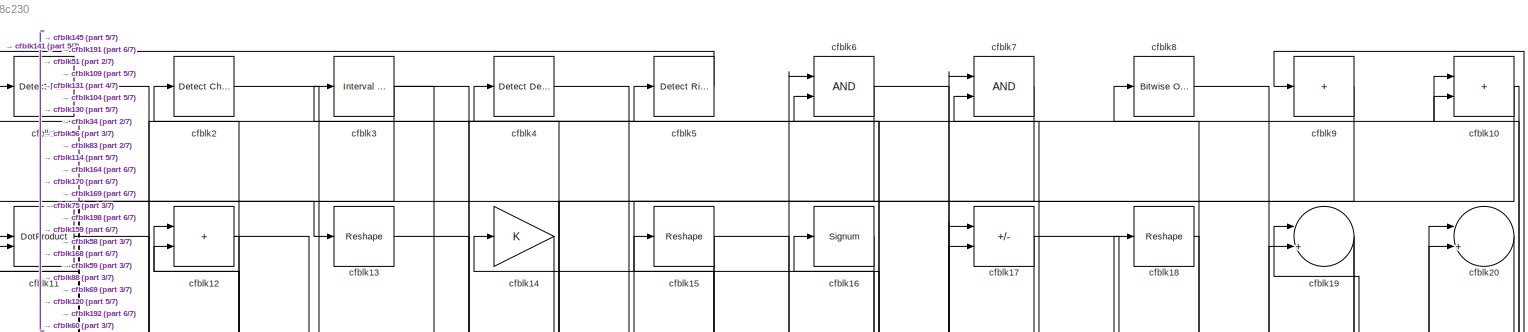
[diagram: root canvas - part 1/7, full width, top band]
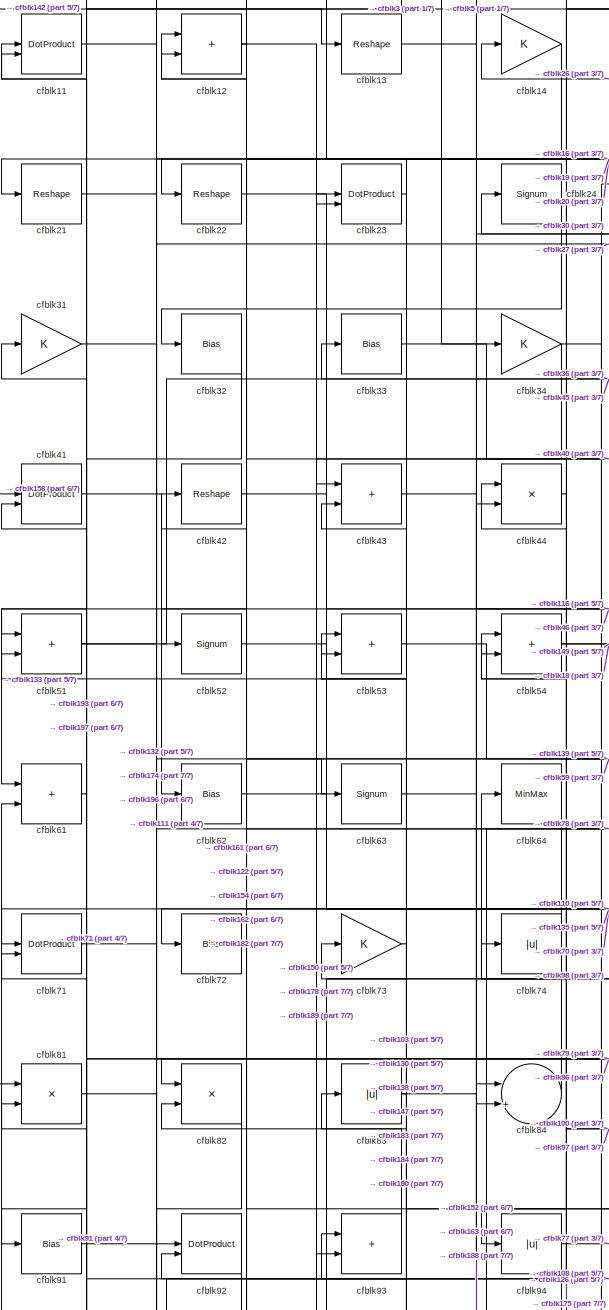
[diagram: root canvas - part 2/7, top left region]
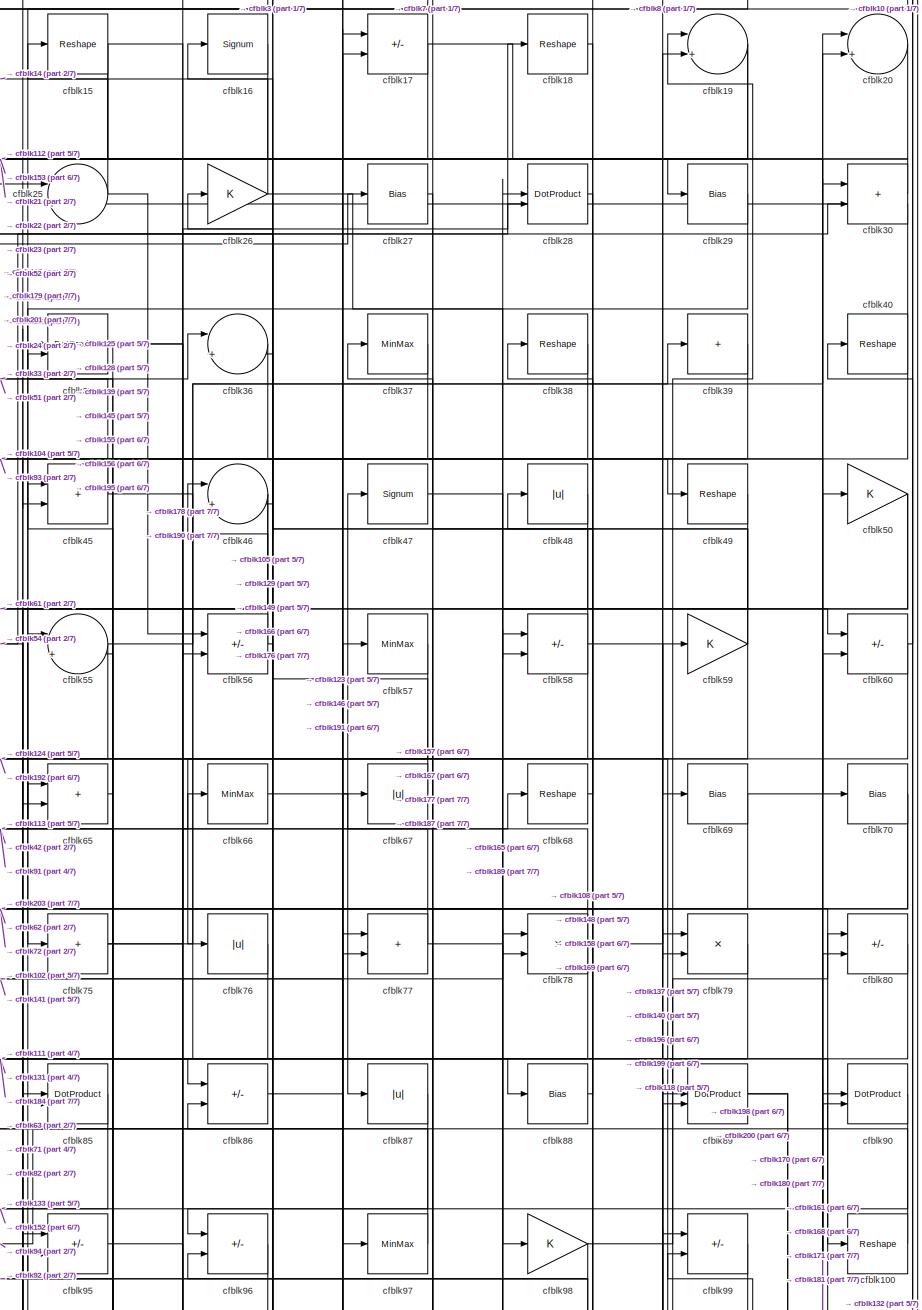
[diagram: root canvas - part 3/7, top right region]
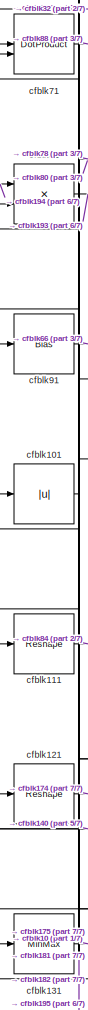
[diagram: root canvas - part 4/7, middle left region]
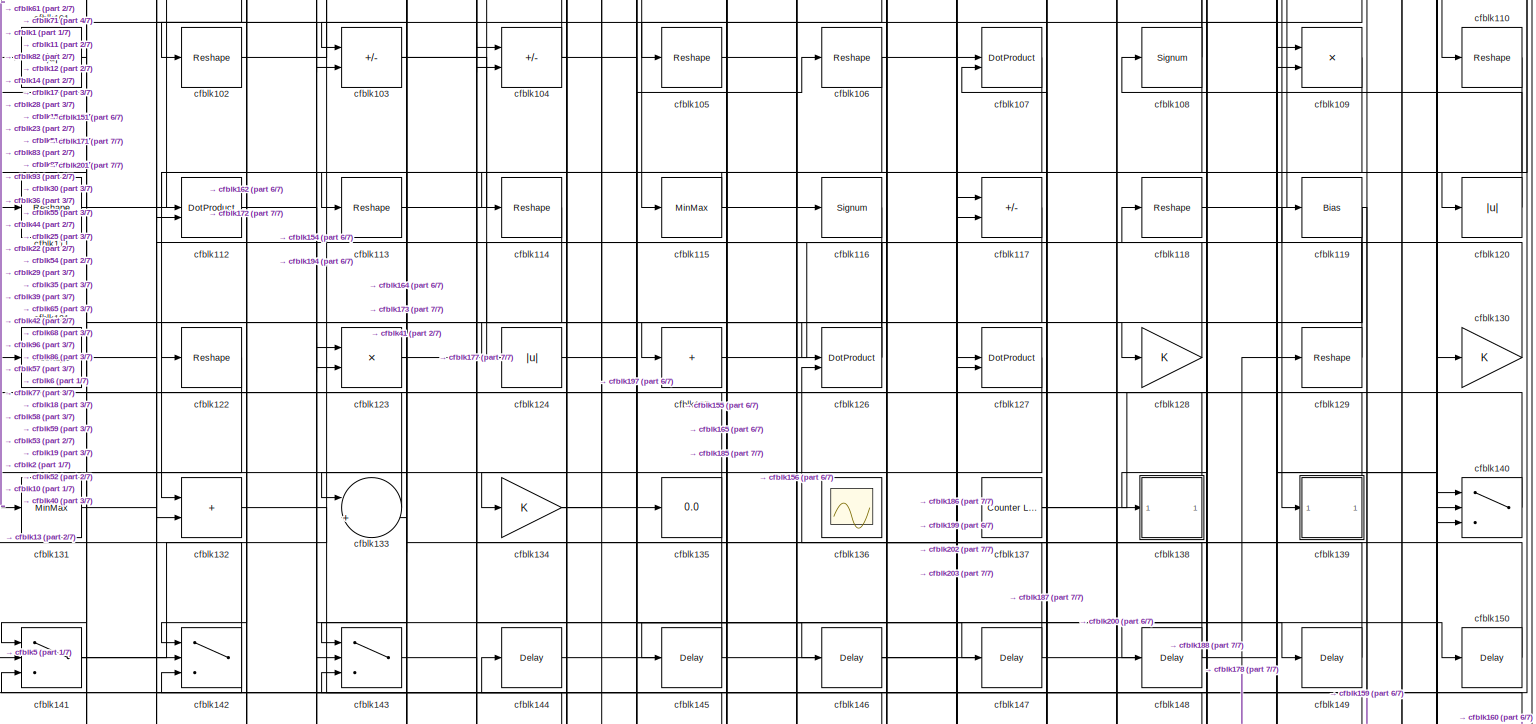
[diagram: root canvas - part 5/7, full width, middle band]
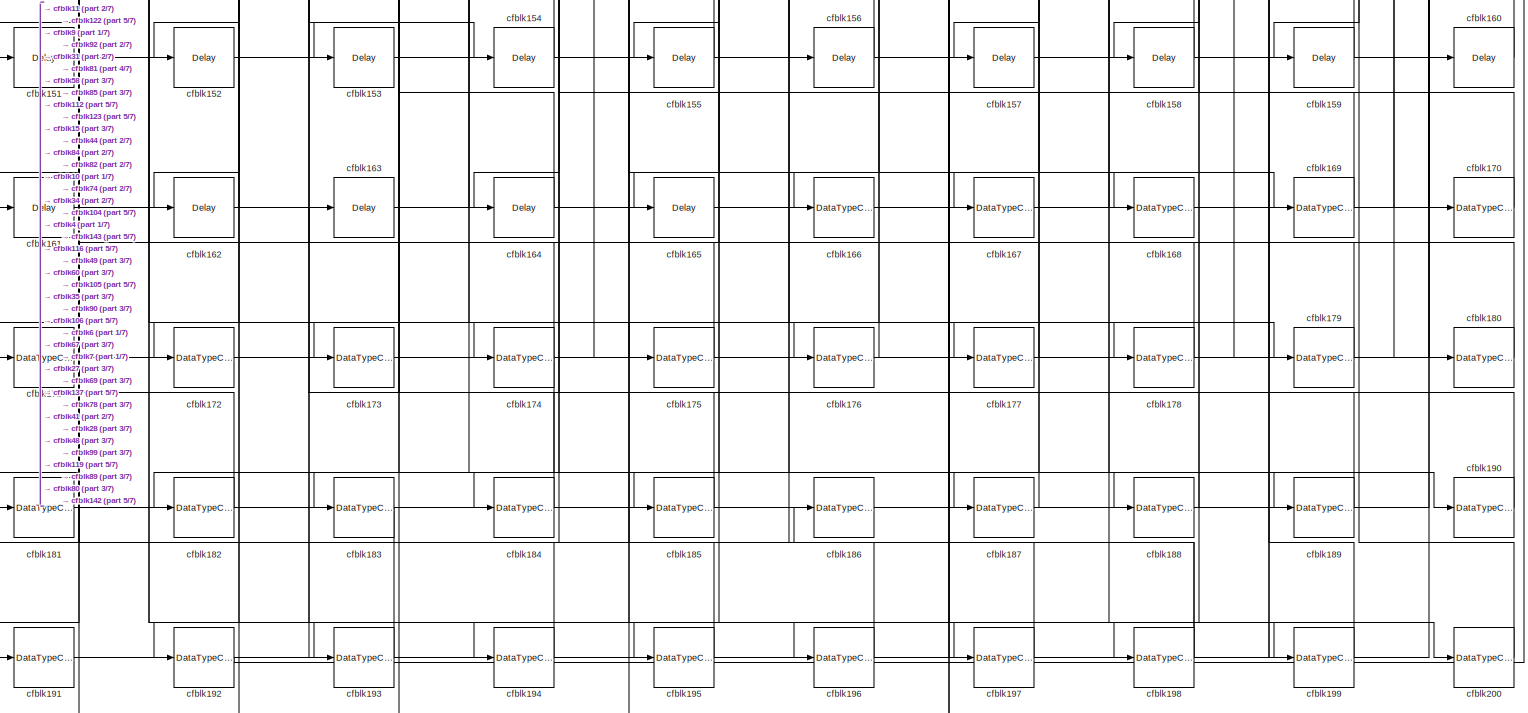
[diagram: root canvas - part 6/7, full width, bottom band]
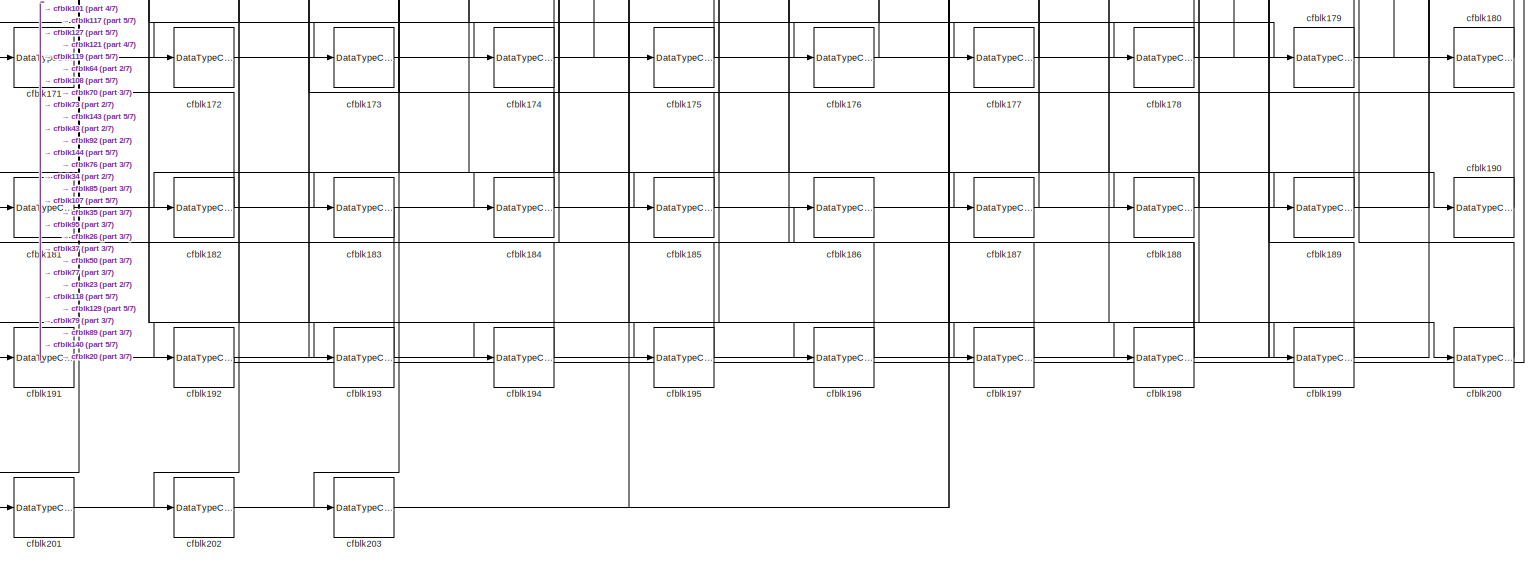
[diagram: root canvas - part 7/7, full width, bottom band]
MODEL slx_63f96dd8c230
KIND model
CONFIG AbsTol = auto
CONFIG EnableMultiTasking = off
CONFIG FixedStep = auto
CONFIG MaxStep = auto
CONFIG MinStep = auto
CONFIG RelTol = 1e-3
CONFIG SampleTimeConstraint = Unconstrained
CONFIG SolverName = VariableStepAuto
CONFIG StartTime = 0.0
CONFIG StopTime = 10.0
BLOCK [Reference] cfblk1  REF=hdlsllib/Logic and Bit
Operations/Detect Fall
Nonpositive
  SourceBlock = hdlsllib/Logic and Bit\nOperations/Detect Fall\nNonpositive
  SourceType = Detect Fall Nonpositive
BLOCK [Sum] cfblk10
  IconShape = rectangular
BLOCK [Reshape] cfblk100
BLOCK [Abs] cfblk101
  SaturateOnIntegerOverflow = off
BLOCK [Reshape] cfblk102
BLOCK [Sum] cfblk103
  IconShape = rectangular
  Inputs = +-
BLOCK [Sum] cfblk104
  IconShape = rectangular
  Inputs = +-
BLOCK [Reshape] cfblk105
BLOCK [Reshape] cfblk106
BLOCK [DotProduct] cfblk107
  OutDataTypeStr = Inherit: Inherit via internal rule
BLOCK [Signum] cfblk108
BLOCK [Product] cfblk109
  Inputs = */
  RndMeth = Zero
  SaturateOnIntegerOverflow = on
BLOCK [DotProduct] cfblk11
  OutDataTypeStr = Inherit: Inherit via internal rule
BLOCK [Reshape] cfblk110
BLOCK [Reshape] cfblk111
BLOCK [DotProduct] cfblk112
  OutDataTypeStr = Inherit: Inherit via internal rule
BLOCK [Reshape] cfblk113
BLOCK [Reshape] cfblk114
BLOCK [MinMax] cfblk115
BLOCK [Signum] cfblk116
BLOCK [Sum] cfblk117
  IconShape = rectangular
  Inputs = +-
BLOCK [Reshape] cfblk118
BLOCK [Bias] cfblk119
  Bias = 0.0
  SaturateOnIntegerOverflow = off
BLOCK [Sum] cfblk12
  IconShape = rectangular
BLOCK [Abs] cfblk120
  SaturateOnIntegerOverflow = off
BLOCK [Reshape] cfblk121
BLOCK [Reshape] cfblk122
BLOCK [Product] cfblk123
  Inputs = */
  RndMeth = Zero
  SaturateOnIntegerOverflow = on
BLOCK [Abs] cfblk124
  SaturateOnIntegerOverflow = off
BLOCK [Sum] cfblk125
  IconShape = rectangular
  Inputs = +
BLOCK [DotProduct] cfblk126
  OutDataTypeStr = Inherit: Inherit via internal rule
BLOCK [DotProduct] cfblk127
  OutDataTypeStr = Inherit: Inherit via internal rule
BLOCK [Gain] cfblk128
BLOCK [Reshape] cfblk129
BLOCK [Reshape] cfblk13
BLOCK [Gain] cfblk130
BLOCK [MinMax] cfblk131
BLOCK [Sum] cfblk132
  IconShape = rectangular
BLOCK [Sum] cfblk133
  Inputs = |++
BLOCK [Gain] cfblk134
BLOCK [Display] cfblk135
  Decimation = 1
BLOCK [Scope] cfblk136
  Floating = on
  NumInputPorts = 1
  ScopeSpecificationString = Simulink.scopes.TimeScopeBlockCfg('CurrentConfiguration', extmgr.ConfigurationSet(extmgr.Configuration('Core','General UI',true,'FigureColor',[0.156862745098039 0.156862745098039 0.156862745098039]),extmgr.Configuration('Core','Source UI',true),extmgr.Configuration('Sources','WiredSimulink',true,'DataLoggingVariableName','ScopeData1','DataLoggingSaveFormat','StructureWithTime','DataLoggingLimitDat...<+2713ch>
BLOCK [Reference] cfblk137  REF=hdlsllib/Sources/Counter
Limited
  SourceBlock = hdlsllib/Sources/Counter\nLimited
  SourceType = Counter Limited
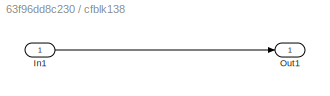
BLOCK [SubSystem] cfblk138
  LibrarySourceBlock = hdlsllib/Ports &\nSubsystems/Subsystem
BLOCK [Inport] cfblk138/In1
BLOCK [Outport] cfblk138/Out1
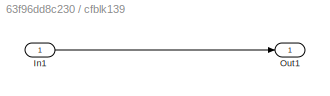
BLOCK [SubSystem] cfblk139
  LibrarySourceBlock = hdlsllib/Ports &\nSubsystems/Subsystem
BLOCK [Inport] cfblk139/In1
BLOCK [Outport] cfblk139/Out1
BLOCK [Gain] cfblk14
BLOCK [Switch] cfblk140
  InputSameDT = off
  SaturateOnIntegerOverflow = off
BLOCK [Switch] cfblk141
  InputSameDT = off
  SaturateOnIntegerOverflow = off
BLOCK [Switch] cfblk142
  InputSameDT = off
  SaturateOnIntegerOverflow = off
BLOCK [Switch] cfblk143
  InputSameDT = off
  SaturateOnIntegerOverflow = off
BLOCK [Delay] cfblk144
  InputPortMap = u0
  SampleTime = 1
BLOCK [Delay] cfblk145
  InputPortMap = u0
  SampleTime = 1
BLOCK [Delay] cfblk146
  InputPortMap = u0
  SampleTime = 1
BLOCK [Delay] cfblk147
  InputPortMap = u0
  SampleTime = 1
BLOCK [Delay] cfblk148
  InputPortMap = u0
  SampleTime = 1
BLOCK [Delay] cfblk149
  InputPortMap = u0
  SampleTime = 1
BLOCK [Reshape] cfblk15
BLOCK [Delay] cfblk150
  InputPortMap = u0
  SampleTime = 1
BLOCK [Delay] cfblk151
  InputPortMap = u0
  SampleTime = 1
BLOCK [Delay] cfblk152
  InputPortMap = u0
  SampleTime = 1
BLOCK [Delay] cfblk153
  InputPortMap = u0
  SampleTime = 1
BLOCK [Delay] cfblk154
  InputPortMap = u0
  SampleTime = 1
BLOCK [Delay] cfblk155
  InputPortMap = u0
  SampleTime = 1
BLOCK [Delay] cfblk156
  InputPortMap = u0
  SampleTime = 1
BLOCK [Delay] cfblk157
  InputPortMap = u0
  SampleTime = 1
BLOCK [Delay] cfblk158
  InputPortMap = u0
  SampleTime = 1
BLOCK [Delay] cfblk159
  InputPortMap = u0
  SampleTime = 1
BLOCK [Signum] cfblk16
BLOCK [Delay] cfblk160
  InputPortMap = u0
  SampleTime = 1
BLOCK [Delay] cfblk161
  InputPortMap = u0
  SampleTime = 1
BLOCK [Delay] cfblk162
  InputPortMap = u0
  SampleTime = 1
BLOCK [Delay] cfblk163
  InputPortMap = u0
  SampleTime = 1
BLOCK [Delay] cfblk164
  InputPortMap = u0
  SampleTime = 1
BLOCK [Delay] cfblk165
  InputPortMap = u0
  SampleTime = 1
BLOCK [DataTypeConversion] cfblk166
  OutDataTypeStr = uint8
  RndMeth = Floor
  SaturateOnIntegerOverflow = off
BLOCK [DataTypeConversion] cfblk167
  OutDataTypeStr = uint8
  RndMeth = Floor
  SaturateOnIntegerOverflow = off
BLOCK [DataTypeConversion] cfblk168
  OutDataTypeStr = uint8
  RndMeth = Floor
  SaturateOnIntegerOverflow = off
BLOCK [DataTypeConversion] cfblk169
  OutDataTypeStr = uint8
  RndMeth = Floor
  SaturateOnIntegerOverflow = off
BLOCK [Sum] cfblk17
  IconShape = rectangular
  Inputs = +-
BLOCK [DataTypeConversion] cfblk170
  OutDataTypeStr = uint8
  RndMeth = Floor
  SaturateOnIntegerOverflow = off
BLOCK [DataTypeConversion] cfblk171
  OutDataTypeStr = uint8
  RndMeth = Floor
  SaturateOnIntegerOverflow = off
BLOCK [DataTypeConversion] cfblk172
  OutDataTypeStr = uint8
  RndMeth = Floor
  SaturateOnIntegerOverflow = off
BLOCK [DataTypeConversion] cfblk173
  OutDataTypeStr = uint8
  RndMeth = Floor
  SaturateOnIntegerOverflow = off
BLOCK [DataTypeConversion] cfblk174
  RndMeth = Floor
  SaturateOnIntegerOverflow = off
BLOCK [DataTypeConversion] cfblk175
  OutDataTypeStr = uint8
  RndMeth = Floor
  SaturateOnIntegerOverflow = off
BLOCK [DataTypeConversion] cfblk176
  RndMeth = Floor
  SaturateOnIntegerOverflow = off
BLOCK [DataTypeConversion] cfblk177
  OutDataTypeStr = uint8
  RndMeth = Floor
  SaturateOnIntegerOverflow = off
BLOCK [DataTypeConversion] cfblk178
  RndMeth = Floor
  SaturateOnIntegerOverflow = off
BLOCK [DataTypeConversion] cfblk179
  OutDataTypeStr = uint8
  RndMeth = Floor
  SaturateOnIntegerOverflow = off
BLOCK [Reshape] cfblk18
BLOCK [DataTypeConversion] cfblk180
  OutDataTypeStr = uint8
  RndMeth = Floor
  SaturateOnIntegerOverflow = off
BLOCK [DataTypeConversion] cfblk181
  OutDataTypeStr = uint8
  RndMeth = Floor
  SaturateOnIntegerOverflow = off
BLOCK [DataTypeConversion] cfblk182
  OutDataTypeStr = uint8
  RndMeth = Floor
  SaturateOnIntegerOverflow = off
BLOCK [DataTypeConversion] cfblk183
  OutDataTypeStr = uint8
  RndMeth = Floor
  SaturateOnIntegerOverflow = off
BLOCK [DataTypeConversion] cfblk184
  OutDataTypeStr = uint8
  RndMeth = Floor
  SaturateOnIntegerOverflow = off
BLOCK [DataTypeConversion] cfblk185
  OutDataTypeStr = uint8
  RndMeth = Floor
  SaturateOnIntegerOverflow = off
BLOCK [DataTypeConversion] cfblk186
  OutDataTypeStr = uint8
  RndMeth = Floor
  SaturateOnIntegerOverflow = off
BLOCK [DataTypeConversion] cfblk187
  OutDataTypeStr = uint8
  RndMeth = Floor
  SaturateOnIntegerOverflow = off
BLOCK [DataTypeConversion] cfblk188
  OutDataTypeStr = uint8
  RndMeth = Floor
  SaturateOnIntegerOverflow = off
BLOCK [DataTypeConversion] cfblk189
  OutDataTypeStr = uint8
  RndMeth = Floor
  SaturateOnIntegerOverflow = off
BLOCK [Sum] cfblk19
  Inputs = |++
BLOCK [DataTypeConversion] cfblk190
  OutDataTypeStr = uint8
  RndMeth = Floor
  SaturateOnIntegerOverflow = off
BLOCK [DataTypeConversion] cfblk191
  RndMeth = Floor
  SaturateOnIntegerOverflow = off
BLOCK [DataTypeConversion] cfblk192
  OutDataTypeStr = uint8
  RndMeth = Floor
  SaturateOnIntegerOverflow = off
BLOCK [DataTypeConversion] cfblk193
  OutDataTypeStr = uint8
  RndMeth = Floor
  SaturateOnIntegerOverflow = off
BLOCK [DataTypeConversion] cfblk194
  OutDataTypeStr = uint8
  RndMeth = Floor
  SaturateOnIntegerOverflow = off
BLOCK [DataTypeConversion] cfblk195
  OutDataTypeStr = uint8
  RndMeth = Floor
  SaturateOnIntegerOverflow = off
BLOCK [DataTypeConversion] cfblk196
  RndMeth = Floor
  SaturateOnIntegerOverflow = off
BLOCK [DataTypeConversion] cfblk197
  OutDataTypeStr = uint8
  RndMeth = Floor
  SaturateOnIntegerOverflow = off
BLOCK [DataTypeConversion] cfblk198
  RndMeth = Floor
  SaturateOnIntegerOverflow = off
BLOCK [DataTypeConversion] cfblk199
  OutDataTypeStr = uint8
  RndMeth = Floor
  SaturateOnIntegerOverflow = off
BLOCK [Reference] cfblk2  REF=simulink/Logic and Bit
Operations/Detect
Change
  LibrarySourceBlock = hdlsllib/Logic and Bit\nOperations/Detect\nChange
  SourceBlock = simulink/Logic and Bit\nOperations/Detect\nChange
  SourceType = Detect Change
BLOCK [Sum] cfblk20
  Inputs = |++
BLOCK [DataTypeConversion] cfblk200
  OutDataTypeStr = uint8
  RndMeth = Floor
  SaturateOnIntegerOverflow = off
BLOCK [DataTypeConversion] cfblk201
  OutDataTypeStr = uint8
  RndMeth = Floor
  SaturateOnIntegerOverflow = off
BLOCK [DataTypeConversion] cfblk202
  OutDataTypeStr = uint8
  RndMeth = Floor
  SaturateOnIntegerOverflow = off
BLOCK [DataTypeConversion] cfblk203
  OutDataTypeStr = uint8
  RndMeth = Floor
  SaturateOnIntegerOverflow = off
BLOCK [Reshape] cfblk21
BLOCK [Reshape] cfblk22
BLOCK [DotProduct] cfblk23
  OutDataTypeStr = Inherit: Inherit via internal rule
BLOCK [Signum] cfblk24
BLOCK [Sum] cfblk25
  Inputs = |++
BLOCK [Gain] cfblk26
BLOCK [Bias] cfblk27
  Bias = 0.0
  SaturateOnIntegerOverflow = off
BLOCK [DotProduct] cfblk28
  OutDataTypeStr = Inherit: Inherit via internal rule
BLOCK [Bias] cfblk29
  Bias = 0.0
  SaturateOnIntegerOverflow = off
BLOCK [Reference] cfblk3  REF=hdlsllib/Logic and Bit
Operations/Interval Test
  SourceBlock = hdlsllib/Logic and Bit\nOperations/Interval Test
  SourceType = Interval Test
BLOCK [Sum] cfblk30
  IconShape = rectangular
BLOCK [Gain] cfblk31
BLOCK [Bias] cfblk32
  Bias = 0.0
  SaturateOnIntegerOverflow = off
BLOCK [Bias] cfblk33
  Bias = 0.0
  SaturateOnIntegerOverflow = off
BLOCK [Gain] cfblk34
BLOCK [DotProduct] cfblk35
  OutDataTypeStr = Inherit: Inherit via internal rule
BLOCK [Sum] cfblk36
  Inputs = |++
BLOCK [MinMax] cfblk37
BLOCK [Reshape] cfblk38
BLOCK [Sum] cfblk39
  IconShape = rectangular
  Inputs = +
BLOCK [Reference] cfblk4  REF=simulink/Logic and Bit
Operations/Detect
Decrease
  LibrarySourceBlock = hdlsllib/Logic and Bit\nOperations/Detect\nDecrease
  SourceBlock = simulink/Logic and Bit\nOperations/Detect\nDecrease
  SourceType = Detect Decrease
BLOCK [Reshape] cfblk40
BLOCK [DotProduct] cfblk41
  OutDataTypeStr = Inherit: Inherit via internal rule
BLOCK [Reshape] cfblk42
BLOCK [Sum] cfblk43
  IconShape = rectangular
BLOCK [Product] cfblk44
  Inputs = */
  RndMeth = Zero
  SaturateOnIntegerOverflow = on
BLOCK [Sum] cfblk45
  IconShape = rectangular
BLOCK [Sum] cfblk46
  Inputs = |++
BLOCK [Signum] cfblk47
BLOCK [Abs] cfblk48
  SaturateOnIntegerOverflow = off
BLOCK [Reshape] cfblk49
BLOCK [Reference] cfblk5  REF=hdlsllib/Logic and Bit
Operations/Detect Rise
Positive
  SourceBlock = hdlsllib/Logic and Bit\nOperations/Detect Rise\nPositive
  SourceType = Detect Rise Positive
BLOCK [Gain] cfblk50
BLOCK [Sum] cfblk51
  IconShape = rectangular
BLOCK [Signum] cfblk52
BLOCK [Sum] cfblk53
  IconShape = rectangular
BLOCK [Sum] cfblk54
  IconShape = rectangular
BLOCK [Sum] cfblk55
  Inputs = |++
BLOCK [Sum] cfblk56
  IconShape = rectangular
  Inputs = +-
BLOCK [MinMax] cfblk57
BLOCK [Sum] cfblk58
  IconShape = rectangular
  Inputs = +-
BLOCK [Gain] cfblk59
BLOCK [Logic] cfblk6
  AllPortsSameDT = off
  OutDataTypeStr = boolean
BLOCK [Sum] cfblk60
  IconShape = rectangular
  Inputs = +-
BLOCK [Sum] cfblk61
  IconShape = rectangular
BLOCK [Bias] cfblk62
  Bias = 0.0
  SaturateOnIntegerOverflow = off
BLOCK [Signum] cfblk63
BLOCK [MinMax] cfblk64
BLOCK [Sum] cfblk65
  IconShape = rectangular
BLOCK [MinMax] cfblk66
BLOCK [Abs] cfblk67
  SaturateOnIntegerOverflow = off
BLOCK [Reshape] cfblk68
BLOCK [Bias] cfblk69
  Bias = 0.0
  SaturateOnIntegerOverflow = off
BLOCK [Logic] cfblk7
  AllPortsSameDT = off
  OutDataTypeStr = boolean
BLOCK [Bias] cfblk70
  Bias = 0.0
  SaturateOnIntegerOverflow = off
BLOCK [DotProduct] cfblk71
  OutDataTypeStr = Inherit: Inherit via internal rule
BLOCK [Bias] cfblk72
  Bias = 0.0
  SaturateOnIntegerOverflow = off
BLOCK [Gain] cfblk73
BLOCK [Abs] cfblk74
  SaturateOnIntegerOverflow = off
BLOCK [Sum] cfblk75
  IconShape = rectangular
  Inputs = +
BLOCK [Abs] cfblk76
  SaturateOnIntegerOverflow = off
BLOCK [Sum] cfblk77
  IconShape = rectangular
BLOCK [Product] cfblk78
  Inputs = */
  RndMeth = Zero
  SaturateOnIntegerOverflow = on
BLOCK [Product] cfblk79
  Inputs = */
  RndMeth = Zero
  SaturateOnIntegerOverflow = on
BLOCK [Reference] cfblk8  REF=simulink/Logic and Bit
Operations/Bitwise
Operator
  LibrarySourceBlock = hdlsllib/Logic and Bit\nOperations/Bitwise\nOperator
  SourceBlock = simulink/Logic and Bit\nOperations/Bitwise\nOperator
  SourceType = Bitwise Operator
BLOCK [Sum] cfblk80
  IconShape = rectangular
  Inputs = +-
BLOCK [Product] cfblk81
  Inputs = */
  RndMeth = Zero
  SaturateOnIntegerOverflow = on
BLOCK [Product] cfblk82
  Inputs = */
  RndMeth = Zero
  SaturateOnIntegerOverflow = on
BLOCK [Abs] cfblk83
  SaturateOnIntegerOverflow = off
BLOCK [Sum] cfblk84
  Inputs = |++
BLOCK [DotProduct] cfblk85
  OutDataTypeStr = Inherit: Inherit via internal rule
BLOCK [Sum] cfblk86
  IconShape = rectangular
  Inputs = +-
BLOCK [Abs] cfblk87
  SaturateOnIntegerOverflow = off
BLOCK [Bias] cfblk88
  Bias = 0.0
  SaturateOnIntegerOverflow = off
BLOCK [DotProduct] cfblk89
  OutDataTypeStr = Inherit: Inherit via internal rule
BLOCK [Sum] cfblk9
  IconShape = rectangular
  Inputs = +
BLOCK [DotProduct] cfblk90
  OutDataTypeStr = Inherit: Inherit via internal rule
BLOCK [Bias] cfblk91
  Bias = 0.0
  SaturateOnIntegerOverflow = off
BLOCK [DotProduct] cfblk92
  OutDataTypeStr = Inherit: Inherit via internal rule
BLOCK [Sum] cfblk93
  IconShape = rectangular
BLOCK [Abs] cfblk94
  SaturateOnIntegerOverflow = off
BLOCK [Sum] cfblk95
  IconShape = rectangular
  Inputs = +-
BLOCK [Sum] cfblk96
  IconShape = rectangular
  Inputs = +-
BLOCK [MinMax] cfblk97
BLOCK [Gain] cfblk98
BLOCK [Sum] cfblk99
  IconShape = rectangular
  Inputs = +-
LINE cfblk100:1 -> cfblk54:1
LINE cfblk101:1 -> cfblk181:1
LINE cfblk102:1 -> cfblk17:1
NET cfblk103:1 -> cfblk128:1, cfblk30:2
NET cfblk104:1 -> cfblk134:1, cfblk197:1, cfblk2:1
LINE cfblk105:1 -> cfblk156:1
NET cfblk106:1 -> cfblk123:2, cfblk199:1
LINE cfblk107:1 -> cfblk185:1
NET cfblk108:1 -> cfblk173:1, cfblk41:2, cfblk96:2
LINE cfblk109:1 -> cfblk143:1
NET cfblk10:1 -> cfblk120:1, cfblk164:1
LINE cfblk110:1 -> cfblk132:1
LINE cfblk111:1 -> cfblk84:2
NET cfblk112:1 -> cfblk154:1, cfblk194:1
NET cfblk113:1 -> cfblk147:1, cfblk55:1
LINE cfblk114:1 -> cfblk141:1
NET cfblk115:1 -> cfblk113:1, cfblk68:1
LINE cfblk116:1 -> cfblk165:1
LINE cfblk117:1 -> cfblk201:1
NET cfblk118:1 -> cfblk140:3, cfblk19:1
NET cfblk119:1 -> cfblk138:1, cfblk159:1, cfblk172:1
LINE cfblk11:1 -> cfblk103:2
LINE cfblk120:1 -> cfblk108:1
LINE cfblk121:1 -> cfblk174:1
LINE cfblk122:1 -> cfblk151:1
NET cfblk123:1 -> cfblk133:2, cfblk17:2
LINE cfblk124:1 -> cfblk146:1
LINE cfblk125:1 -> cfblk57:1
NET cfblk126:1 -> cfblk44:1, cfblk83:1
LINE cfblk127:1 -> cfblk171:1
LINE cfblk128:1 -> cfblk65:1
LINE cfblk129:1 -> cfblk86:2
NET cfblk12:1 -> cfblk122:1, cfblk150:1
LINE cfblk130:1 -> cfblk53:2
LINE cfblk131:1 -> cfblk10:1
LINE cfblk132:1 -> cfblk40:1
LINE cfblk133:1 -> cfblk61:2
NET cfblk134:1 -> cfblk106:1, cfblk25:1
NET cfblk137:1 -> cfblk200:1, cfblk59:1
LINE cfblk138/In1:1 -> cfblk138/Out1:1
LINE cfblk138:1 -> cfblk93:1
LINE cfblk139/In1:1 -> cfblk139/Out1:1
LINE cfblk139:1 -> cfblk55:2
LINE cfblk13:1 -> cfblk126:1
LINE cfblk140:1 -> cfblk71:2
NET cfblk141:1 -> cfblk119:1, cfblk28:1
NET cfblk142:1 -> cfblk13:1, cfblk141:3
LINE cfblk143:1 -> cfblk177:1
LINE cfblk144:1 -> cfblk109:1
LINE cfblk145:1 -> cfblk1:1
LINE cfblk146:1 -> cfblk77:2
LINE cfblk147:1 -> cfblk51:2
LINE cfblk148:1 -> cfblk104:1
LINE cfblk149:1 -> cfblk36:2
LINE cfblk14:1 -> cfblk142:1
LINE cfblk150:1 -> cfblk126:2
LINE cfblk151:1 -> cfblk123:1
LINE cfblk152:1 -> cfblk84:1
LINE cfblk153:1 -> cfblk58:1
LINE cfblk154:1 -> cfblk82:2
LINE cfblk155:1 -> cfblk143:2
LINE cfblk156:1 -> cfblk35:2
LINE cfblk157:1 -> cfblk80:2
LINE cfblk158:1 -> cfblk41:1
LINE cfblk159:1 -> cfblk6:2
NET cfblk15:1 -> cfblk112:2, cfblk153:1, cfblk49:1
LINE cfblk160:1 -> cfblk142:2
LINE cfblk161:1 -> cfblk60:2
LINE cfblk162:1 -> cfblk142:3
LINE cfblk163:1 -> cfblk44:2
LINE cfblk164:1 -> cfblk143:3
LINE cfblk165:1 -> cfblk78:1
LINE cfblk166:1 -> cfblk67:1
LINE cfblk167:1 -> cfblk90:1
LINE cfblk168:1 -> cfblk90:2
LINE cfblk169:1 -> cfblk48:1
LINE cfblk16:1 -> cfblk21:1
LINE cfblk170:1 -> cfblk4:1
LINE cfblk171:1 -> cfblk20:2
LINE cfblk172:1 -> cfblk127:1
LINE cfblk173:1 -> cfblk127:2
NET cfblk174:1 -> cfblk179:1, cfblk202:1, cfblk92:1
LINE cfblk175:1 -> cfblk121:1
NET cfblk176:1 -> cfblk26:1, cfblk79:1
LINE cfblk177:1 -> cfblk37:1
NET cfblk178:1 -> cfblk129:1, cfblk140:1, cfblk23:1
LINE cfblk179:1 -> cfblk95:1
NET cfblk17:1 -> cfblk29:1, cfblk46:2
LINE cfblk180:1 -> cfblk95:2
LINE cfblk181:1 -> cfblk50:1
LINE cfblk182:1 -> cfblk101:1
LINE cfblk183:1 -> cfblk186:1
LINE cfblk184:1 -> cfblk73:1
LINE cfblk185:1 -> cfblk144:1
LINE cfblk186:1 -> cfblk107:1
LINE cfblk187:1 -> cfblk107:2
LINE cfblk188:1 -> cfblk118:1
LINE cfblk189:1 -> cfblk43:1
LINE cfblk18:1 -> cfblk148:1
LINE cfblk190:1 -> cfblk43:2
NET cfblk191:1 -> cfblk163:1, cfblk7:1, cfblk89:2
LINE cfblk192:1 -> cfblk9:1
LINE cfblk193:1 -> cfblk11:2
LINE cfblk194:1 -> cfblk81:1
LINE cfblk195:1 -> cfblk81:2
NET cfblk196:1 -> cfblk74:1, cfblk89:1
LINE cfblk197:1 -> cfblk31:1
NET cfblk198:1 -> cfblk160:1, cfblk35:1, cfblk6:1
LINE cfblk199:1 -> cfblk99:1
NET cfblk19:1 -> cfblk102:1, cfblk52:1
LINE cfblk1:1 -> cfblk109:2
LINE cfblk200:1 -> cfblk99:2
LINE cfblk201:1 -> cfblk85:1
LINE cfblk202:1 -> cfblk117:1
LINE cfblk203:1 -> cfblk117:2
LINE cfblk20:1 -> cfblk23:2
LINE cfblk21:1 -> cfblk63:1
LINE cfblk22:1 -> cfblk135:1
LINE cfblk23:1 -> cfblk103:1
LINE cfblk24:1 -> cfblk32:1
NET cfblk25:1 -> cfblk15:1, cfblk56:1
NET cfblk26:1 -> cfblk14:1, cfblk78:2
LINE cfblk27:1 -> cfblk167:1
LINE cfblk28:1 -> cfblk158:1
LINE cfblk29:1 -> cfblk115:1
LINE cfblk2:1 -> cfblk130:1
LINE cfblk30:1 -> cfblk22:1
LINE cfblk31:1 -> cfblk196:1
LINE cfblk32:1 -> cfblk91:1
LINE cfblk33:1 -> cfblk70:1
NET cfblk34:1 -> cfblk162:1, cfblk175:1
NET cfblk35:1 -> cfblk125:1, cfblk190:1, cfblk79:2
LINE cfblk36:1 -> cfblk104:2
LINE cfblk37:1 -> cfblk176:1
LINE cfblk38:1 -> cfblk45:2
LINE cfblk39:1 -> cfblk145:1
NET cfblk3:1 -> cfblk34:1, cfblk51:1, cfblk56:2
NET cfblk40:1 -> cfblk25:2, cfblk93:2
LINE cfblk41:1 -> cfblk62:1
LINE cfblk42:1 -> cfblk116:1
LINE cfblk43:1 -> cfblk188:1
LINE cfblk44:1 -> cfblk94:1
NET cfblk45:1 -> cfblk100:1, cfblk33:1
NET cfblk46:1 -> cfblk61:1, cfblk65:2
LINE cfblk47:1 -> cfblk60:1
LINE cfblk48:1 -> cfblk85:2
LINE cfblk49:1 -> cfblk155:1
LINE cfblk4:1 -> cfblk169:1
NET cfblk50:1 -> cfblk187:1, cfblk58:2
NET cfblk51:1 -> cfblk27:1, cfblk36:1
LINE cfblk52:1 -> cfblk110:1
LINE cfblk53:1 -> cfblk139:1
NET cfblk54:1 -> cfblk149:1, cfblk18:1
NET cfblk55:1 -> cfblk124:1, cfblk39:1
NET cfblk56:1 -> cfblk46:1, cfblk96:1
LINE cfblk57:1 -> cfblk76:1
NET cfblk58:1 -> cfblk140:2, cfblk192:1, cfblk3:1
NET cfblk59:1 -> cfblk112:1, cfblk24:1, cfblk7:2
LINE cfblk5:1 -> cfblk141:2
NET cfblk60:1 -> cfblk10:2, cfblk195:1
LINE cfblk61:1 -> cfblk11:1
LINE cfblk62:1 -> cfblk98:1
LINE cfblk63:1 -> cfblk86:1
LINE cfblk64:1 -> cfblk182:1
LINE cfblk65:1 -> cfblk45:1
LINE cfblk66:1 -> cfblk87:1
LINE cfblk67:1 -> cfblk16:1
LINE cfblk68:1 -> cfblk38:1
NET cfblk69:1 -> cfblk157:1, cfblk30:1
NET cfblk6:1 -> cfblk114:1, cfblk168:1
NET cfblk70:1 -> cfblk203:1, cfblk72:1
LINE cfblk71:1 -> cfblk88:1
LINE cfblk72:1 -> cfblk12:2
LINE cfblk73:1 -> cfblk183:1
LINE cfblk74:1 -> cfblk71:1
NET cfblk75:1 -> cfblk20:1, cfblk28:2
LINE cfblk76:1 -> cfblk184:1
NET cfblk77:1 -> cfblk189:1, cfblk47:1
NET cfblk78:1 -> cfblk131:1, cfblk19:2, cfblk42:1
LINE cfblk79:1 -> cfblk82:1
LINE cfblk7:1 -> cfblk75:1
LINE cfblk80:1 -> cfblk111:1
LINE cfblk81:1 -> cfblk193:1
LINE cfblk82:1 -> cfblk132:2
NET cfblk83:1 -> cfblk53:1, cfblk5:1
LINE cfblk84:1 -> cfblk64:1
LINE cfblk85:1 -> cfblk152:1
LINE cfblk86:1 -> cfblk97:1
LINE cfblk87:1 -> cfblk133:1
LINE cfblk88:1 -> cfblk8:1
NET cfblk89:1 -> cfblk170:1, cfblk180:1
LINE cfblk8:1 -> cfblk69:1
LINE cfblk90:1 -> cfblk166:1
LINE cfblk91:1 -> cfblk66:1
LINE cfblk92:1 -> cfblk161:1
LINE cfblk93:1 -> cfblk12:1
LINE cfblk94:1 -> cfblk77:1
LINE cfblk95:1 -> cfblk178:1
LINE cfblk96:1 -> cfblk105:1
LINE cfblk97:1 -> cfblk54:2
NET cfblk98:1 -> cfblk80:1, cfblk92:2
LINE cfblk99:1 -> cfblk198:1
LINE cfblk9:1 -> cfblk191:1
note: NET lines group one-source signal fan-out (src -> all destinations, sorted); 1:1 wires keep LINE
